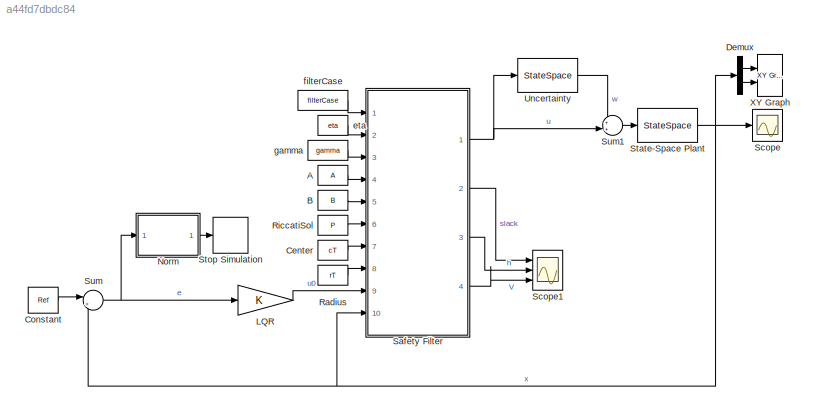
MODEL slx_a44fd7dbdc84
KIND model
CONFIG AbsTol = auto
CONFIG EnableMultiTasking = off
CONFIG FixedStep = auto
CONFIG MaxStep = auto
CONFIG MinStep = auto
CONFIG PreLoadFcn = SafetyCriticalLQRParams
CONFIG RelTol = 1e-7
CONFIG SampleTimeConstraint = Unconstrained
CONFIG SolverName = VariableStepAuto
CONFIG StartTime = 0.0
CONFIG StopTime = tf_upperbound
BLOCK [Constant] A
  NameLocation = left
  Value = A
BLOCK [Constant] B
  NameLocation = left
  Value = B
BLOCK [Constant] Center
  NameLocation = left
  Value = cT
BLOCK [Constant] Constant
  Value = Ref
BLOCK [Demux] Demux
  Outputs = 2
  Ports = [1, 2]
BLOCK [Gain] LQR
  Gain = K
  Multiplication = Matrix(K*u) (u vector)
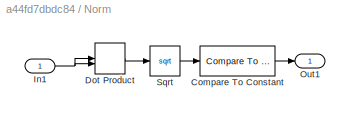
BLOCK [SubSystem] Norm
  Ports = [1, 1]
  RequestExecContextInheritance = off
BLOCK [Reference] Norm/Compare To Constant  REF=simulink/Logic and Bit
Operations/Compare
To Constant
  Ports = [1, 1]
  SourceBlock = simulink/Logic and Bit\nOperations/Compare\nTo Constant
  SourceProductBaseCode = SL
  SourceType = Compare To Constant
BLOCK [DotProduct] Norm/Dot Product
  OutDataTypeStr = Inherit: Inherit via internal rule
BLOCK [Inport] Norm/In1
BLOCK [Outport] Norm/Out1
BLOCK [Sqrt] Norm/Sqrt
BLOCK [Constant] Radius
  NameLocation = left
  Value = rT
BLOCK [Constant] RiccatiSol
  NameLocation = left
  Value = P
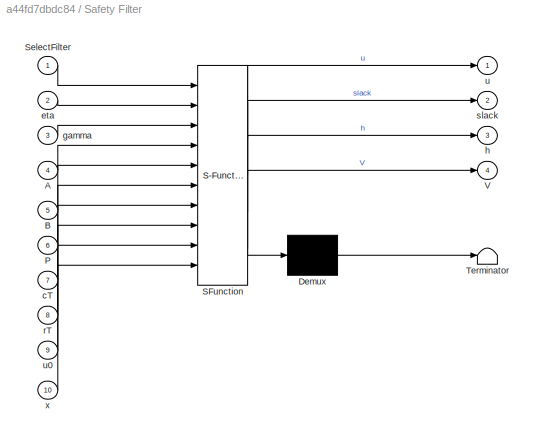
BLOCK [SubSystem] Safety Filter
  ErrorFcn = Stateflow.Translate.translate
  PermitHierarchicalResolution = ExplicitOnly
  Ports = [10, 4]
  RequestExecContextInheritance = off
  SFBlockType = MATLAB Function
  TreatAsAtomicUnit = on
BLOCK [Demux] Safety Filter/ Demux 
  Outputs = 1
  Ports = [1, 1]
BLOCK [S-Function] Safety Filter/ SFunction 
  EnableBusSupport = on
  FunctionName = sf_sfun
  PortCounts = [10 5]
  Ports = [10, 5]
  SFcnIsStateOwnerBlock = off
  SFunctionDeploymentMode = off
  Tag = Stateflow S-Function 2
BLOCK [Terminator] Safety Filter/ Terminator 
BLOCK [Inport] Safety Filter/A
  Port = 4
BLOCK [Inport] Safety Filter/B
  Port = 5
BLOCK [Inport] Safety Filter/P
  Port = 6
BLOCK [Inport] Safety Filter/SelectFilter
BLOCK [Outport] Safety Filter/V
  Port = 4
BLOCK [Inport] Safety Filter/cT
  Port = 7
BLOCK [Inport] Safety Filter/eta
  Port = 2
BLOCK [Inport] Safety Filter/gamma
  Port = 3
BLOCK [Outport] Safety Filter/h
  Port = 3
BLOCK [Inport] Safety Filter/rT
  Port = 8
BLOCK [Outport] Safety Filter/slack
  Port = 2
BLOCK [Outport] Safety Filter/u
BLOCK [Inport] Safety Filter/u0
  Port = 9
BLOCK [Inport] Safety Filter/x
  Port = 10
BLOCK [Scope] Scope
  Floating = off
  NumInputPorts = 1
  Ports = [1]
  ScopeSpecificationString = Simulink.scopes.TimeScopeBlockCfg('CurrentConfiguration', extmgr.ConfigurationSet(extmgr.Configuration('Core','General UI',true),extmgr.Configuration('Core','Source UI',true),extmgr.Configuration('Sources','WiredSimulink',true),extmgr.Configuration('Visuals','Time Domain',true,'SerializedDisplays',{struct('MinYLimReal','-4.42569','MaxYLimReal','17.54698','YLabelReal','','MinYLimMag','0.00000','Max...<+1333ch>
BLOCK [Scope] Scope1
  Floating = off
  NumInputPorts = 3
  Ports = [3]
  ScopeSpecificationString = Simulink.scopes.TimeScopeBlockCfg('CurrentConfiguration', extmgr.ConfigurationSet(extmgr.Configuration('Core','General UI',true),extmgr.Configuration('Core','Source UI',true),extmgr.Configuration('Sources','WiredSimulink',true,'DataLoggingVariableName','ScopeData1'),extmgr.Configuration('Visuals','Time Domain',true,'SerializedDisplays',{struct('MinYLimReal','-13.62535','MaxYLimReal','122.62811','Y...<+2987ch>
BLOCK [StateSpace] State-Space Plant
  A = A
  B = B
  C = C
  D = D
  InitialCondition = x0
  Ports = [1, 1]
BLOCK [Stop] Stop Simulation
BLOCK [Sum] Sum
  Inputs = |+-
  Ports = [2, 1]
BLOCK [Sum] Sum1
  Inputs = ++|
  Ports = [2, 1]
BLOCK [StateSpace] Uncertainty
  A = Delta.A
  B = Delta.B
  C = Delta.C
  D = Delta.D
  InitialCondition = 0
  Ports = [1, 1]
BLOCK [Reference] XY Graph  REF=simulink/Sinks/XY Graph
  Ports = [2]
  SourceBlock = simulink/Sinks/XY Graph
  SourceProductBaseCode = SL
  SourceType = XY scope.
BLOCK [Constant] eta
  NameLocation = left
  Value = eta
BLOCK [Constant] filterCase
  NameLocation = left
  Value = filterCase
BLOCK [Constant] gamma
  NameLocation = left
  Value = gamma
LINE A:1 -> Safety Filter:4
LINE B:1 -> Safety Filter:5
LINE Center:1 -> Safety Filter:7
LINE Constant:1 -> Sum:1
LINE Demux:1 -> XY Graph:1
LINE Demux:2 -> XY Graph:2
LINE LQR:1 -> Safety Filter:9
LINE Norm/Compare To Constant:1 -> Norm/Out1:1
LINE Norm/Dot Product:1 -> Norm/Sqrt:1
NET Norm/In1:1 -> Norm/Dot Product:1, Norm/Dot Product:2
LINE Norm/Sqrt:1 -> Norm/Compare To Constant:1
LINE Norm:1 -> Stop Simulation:1
LINE Radius:1 -> Safety Filter:8
LINE RiccatiSol:1 -> Safety Filter:6
NET Safety Filter:1 -> Sum1:2, Uncertainty:1
LINE Safety Filter:2 -> Scope1:1
LINE Safety Filter:3 -> Scope1:2
LINE Safety Filter:4 -> Scope1:3
NET State-Space Plant:1 -> Demux:1, Safety Filter:10, Scope:1, Sum:2
LINE Sum1:1 -> State-Space Plant:1
NET Sum:1 -> LQR:1, Norm:1
LINE Uncertainty:1 -> Sum1:1
LINE eta:1 -> Safety Filter:2
LINE filterCase:1 -> Safety Filter:1
LINE gamma:1 -> Safety Filter:3
note: NET lines group one-source signal fan-out (src -> all destinations, sorted); 1:1 wires keep LINE
CHART Safety Filter states=1 transitions=1
  STATE_LABEL 'eML_blk_kernel()'
  STATE_LABEL "SCRIPT:\nfunction [u,slack,h,V] = fcn(SelectFilter,eta,gamma,A,B,P,cT,rT,u0,x)\n\n% Compute h and V\nh = (x(1)-cT(1))^2 + (x(2)-cT(2))^2 - rT^2;\nV = x'*P*x;\nslack = 0;\n\n% Select filter based on the specified case\nswitch SelectFilter\n    case 1\n        % Nominal LQR\n        u = u0;\n        \n    case 2\n        % CBF Only\n        u = CBFQP(eta,h,cT,u0,x);\n        \n    case 3\n        % CLF-CBF\n        [u,...<+1377ch>"
CHART  states=0 transitions=0
